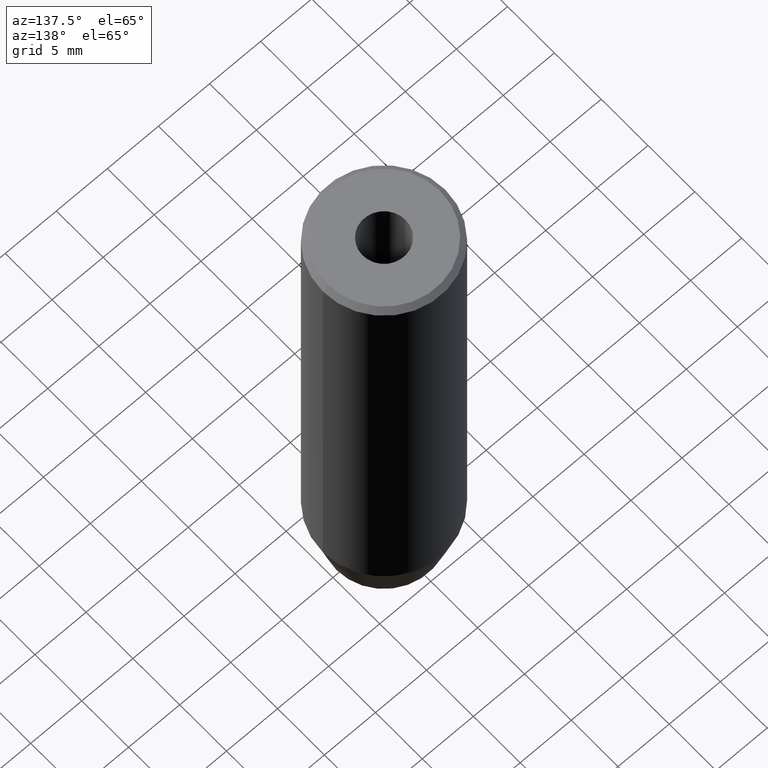
[diagram: clean part render]
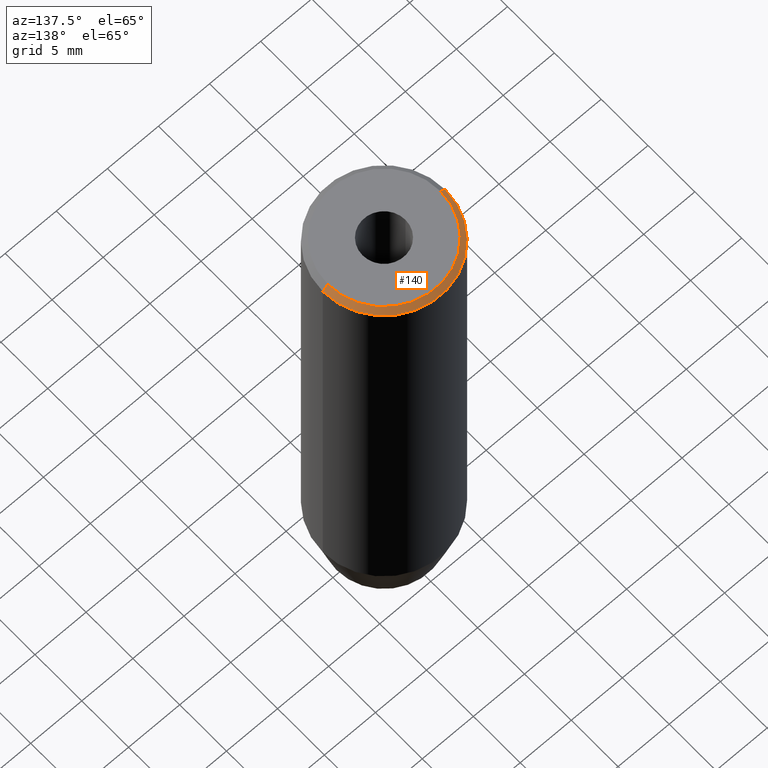
[diagram: same view with one face highlighted and labeled with its STEP entity id]
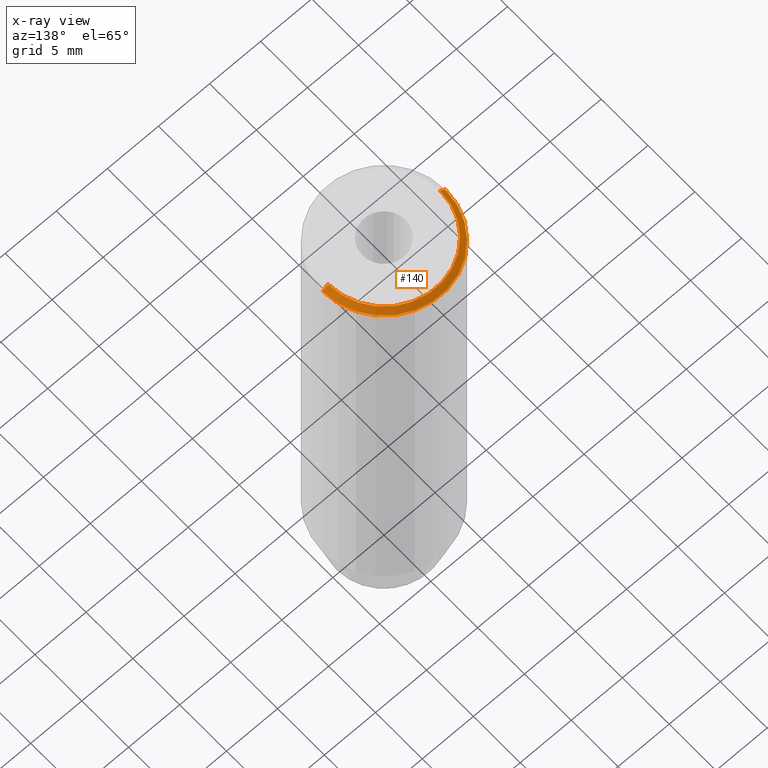
[diagram: x-ray of the same camera — body ghosted, the highlighted face saturated]
A machine part, auxiliary view. The second image highlights one B-rep face of the part: STEP entity #140.
The next image is the same camera in x-ray: the body ghosted, the highlighted face saturated — about 0% of this face is hidden behind the body in this view.
In plain terms, the highlighted conical surface has half-angle 45 deg.
Its self-contained STEP definition (entity closure, byte-faithful):
#19 = AXIS2_PLACEMENT_3D ( 'NONE', #543, #144, #321 ) ;
#36 = DIRECTION ( 'NONE',  ( -0.7071067811865474617, 0.000000000000000000, -0.7071067811865474617 ) ) ;
#39 = CIRCLE ( 'NONE', #19, 6.000000000000000000 ) ;
#45 = DIRECTION ( 'NONE',  ( 0.7071067811865474617, 8.659560562354932858E-17, -0.7071067811865474617 ) ) ;
#46 = CARTESIAN_POINT ( 'NONE',  ( 5.499999999999990230, 7.041719095097274963E-16, 0.000000000000000000 ) ) ;
#60 = VECTOR ( 'NONE', #36, 1000.000000000000114 ) ;
#81 = ORIENTED_EDGE ( 'NONE', *, *, #571, .T. ) ;
#97 = AXIS2_PLACEMENT_3D ( 'NONE', #133, #135, #356 ) ;
#133 = CARTESIAN_POINT ( 'NONE',  ( 0.000000000000000000, 0.000000000000000000, 0.000000000000000000 ) ) ;
#135 = DIRECTION ( 'NONE',  ( 0.000000000000000000, 0.000000000000000000, -1.000000000000000000 ) ) ;
#140 = ADVANCED_FACE ( 'NONE', ( #304 ), #210, .T. ) ;
#144 = DIRECTION ( 'NONE',  ( 0.000000000000000000, 0.000000000000000000, -1.000000000000000000 ) ) ;
#156 = CIRCLE ( 'NONE', #256, 5.499999999999990230 ) ;
#172 = CARTESIAN_POINT ( 'NONE',  ( -5.499999999999990230, 0.000000000000000000, 0.000000000000000000 ) ) ;
#188 = CARTESIAN_POINT ( 'NONE',  ( -6.000000000000000000, 7.347880794884119736E-16, -0.5000000000000099920 ) ) ;
#193 = VERTEX_POINT ( 'NONE', #46 ) ;
#198 = VERTEX_POINT ( 'NONE', #578 ) ;
#210 = CONICAL_SURFACE ( 'NONE', #97, 5.499999999999990230, 0.7853981633974482790 ) ;
#213 = ORIENTED_EDGE ( 'NONE', *, *, #503, .F. ) ;
#252 = CARTESIAN_POINT ( 'NONE',  ( 0.000000000000000000, 0.000000000000000000, 0.000000000000000000 ) ) ;
#256 = AXIS2_PLACEMENT_3D ( 'NONE', #252, #264, #439 ) ;
#257 = EDGE_CURVE ( 'NONE', #370, #198, #39, .T. ) ;
#264 = DIRECTION ( 'NONE',  ( -0.000000000000000000, -0.000000000000000000, 1.000000000000000000 ) ) ;
#297 = EDGE_LOOP ( 'NONE', ( #536, #81, #337, #213 ) ) ;
#304 = FACE_OUTER_BOUND ( 'NONE', #297, .T. ) ;
#321 = DIRECTION ( 'NONE',  ( 1.000000000000000000, 0.000000000000000000, 0.000000000000000000 ) ) ;
#337 = ORIENTED_EDGE ( 'NONE', *, *, #257, .F. ) ;
#356 = DIRECTION ( 'NONE',  ( -1.000000000000000000, 0.000000000000000000, 0.000000000000000000 ) ) ;
#370 = VERTEX_POINT ( 'NONE', #188 ) ;
#434 = LINE ( 'NONE', #445, #587 ) ;
#439 = DIRECTION ( 'NONE',  ( 1.000000000000000000, 0.000000000000000000, 0.000000000000000000 ) ) ;
#445 = CARTESIAN_POINT ( 'NONE',  ( 5.499999999999990230, 6.735557395310430190E-16, 0.000000000000000000 ) ) ;
#460 = VERTEX_POINT ( 'NONE', #517 ) ;
#503 = EDGE_CURVE ( 'NONE', #460, #370, #577, .T. ) ;
#517 = CARTESIAN_POINT ( 'NONE',  ( -5.499999999999990230, 0.000000000000000000, 0.000000000000000000 ) ) ;
#527 = EDGE_CURVE ( 'NONE', #193, #460, #156, .T. ) ;
#536 = ORIENTED_EDGE ( 'NONE', *, *, #527, .F. ) ;
#543 = CARTESIAN_POINT ( 'NONE',  ( 0.000000000000000000, 0.000000000000000000, -0.5000000000000099920 ) ) ;
#571 = EDGE_CURVE ( 'NONE', #193, #198, #434, .T. ) ;
#577 = LINE ( 'NONE', #172, #60 ) ;
#578 = CARTESIAN_POINT ( 'NONE',  ( 6.000000000000000000, 0.000000000000000000, -0.5000000000000099920 ) ) ;
#587 = VECTOR ( 'NONE', #45, 1000.000000000000114 ) ;